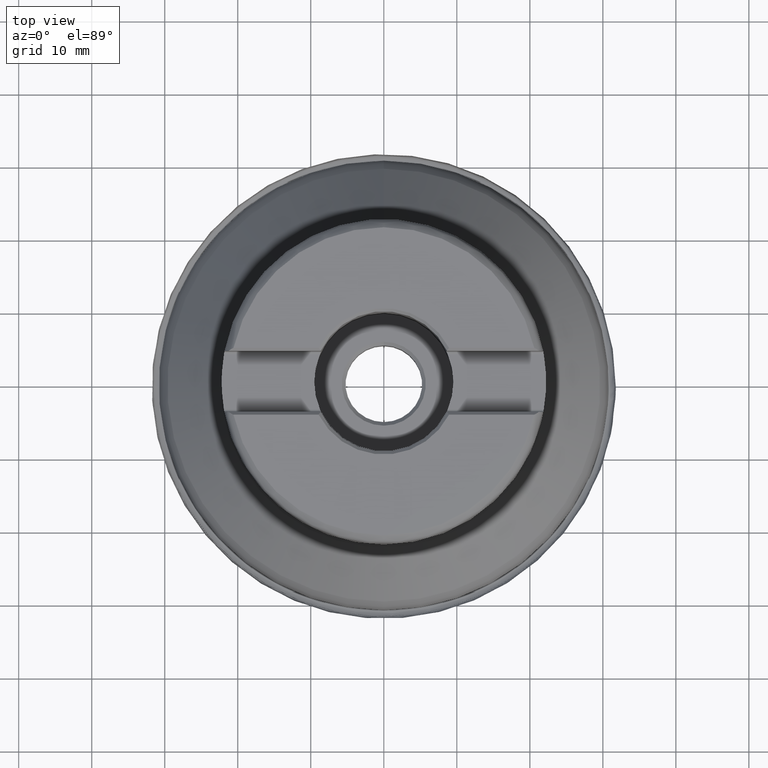
[diagram: clean part render]
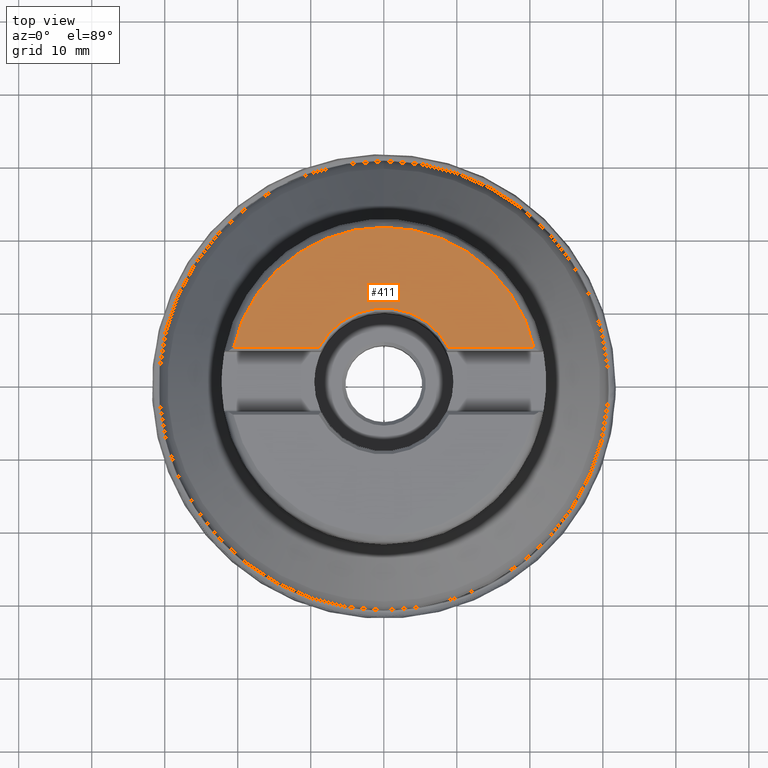
[diagram: same view with one face highlighted and labeled with its STEP entity id]
A machine part, top view. The second image highlights one B-rep face of the part: STEP entity #411.
In plain terms, the highlighted planar face has unit normal (0, 0, 1).
Its self-contained STEP definition (entity closure, byte-faithful):
#301=PLANE('',#1292);
#311=LINE('',#1961,#338);
#313=LINE('',#1981,#340);
#338=VECTOR('',#1350,1.);
#340=VECTOR('',#1362,1.);
#411=ADVANCED_FACE('',(#472),#301,.T.);
#472=FACE_OUTER_BOUND('',#554,.T.);
#554=EDGE_LOOP('',(#853,#854,#855,#856));
#606=CIRCLE('',#1198,21.0967797887081);
#610=CIRCLE('',#1210,10.0269019087899);
#853=ORIENTED_EDGE('',*,*,#1013,.F.);
#854=ORIENTED_EDGE('',*,*,#1035,.F.);
#855=ORIENTED_EDGE('',*,*,#1032,.F.);
#856=ORIENTED_EDGE('',*,*,#1028,.F.);
#916=VERTEX_POINT('',#1898);
#917=VERTEX_POINT('',#1900);
#927=VERTEX_POINT('',#1962);
#930=VERTEX_POINT('',#1973);
#1013=EDGE_CURVE('',#916,#917,#606,.T.);
#1028=EDGE_CURVE('',#917,#927,#311,.T.);
#1032=EDGE_CURVE('',#927,#930,#610,.T.);
#1035=EDGE_CURVE('',#930,#916,#313,.T.);
#1198=AXIS2_PLACEMENT_3D('',#1899,#1326,#1327);
#1210=AXIS2_PLACEMENT_3D('',#1972,#1356,#1357);
#1292=AXIS2_PLACEMENT_3D('',#2290,#1538,#1539);
#1326=DIRECTION('',(0.,-1.17145536458252E-15,-1.));
#1327=DIRECTION('',(0.,-1.,1.31563091114431E-15));
#1350=DIRECTION('',(-1.,0.,0.));
#1356=DIRECTION('',(0.,1.17145536458252E-15,1.));
#1357=DIRECTION('',(0.,-1.,1.38405540754805E-15));
#1362=DIRECTION('',(-1.,0.,0.));
#1538=DIRECTION('',(0.,1.17145536458252E-15,1.));
#1539=DIRECTION('',(0.,-1.,1.17267306976032E-15));
#1898=CARTESIAN_POINT('',(-20.5947442920258,4.57499999999295,44.4499999999929));
#1899=CARTESIAN_POINT('',(0.,5.20711909556932E-14,44.45));
#1900=CARTESIAN_POINT('',(20.5947442920218,4.57500000000005,44.45));
#1961=CARTESIAN_POINT('',(27.,4.57500000000005,44.45));
#1962=CARTESIAN_POINT('',(8.92233920496714,4.57500000000005,44.45));
#1972=CARTESIAN_POINT('',(0.,5.20711909556932E-14,44.45));
#1973=CARTESIAN_POINT('',(-8.92233920496714,4.57500000000005,44.45));
#1981=CARTESIAN_POINT('',(27.,4.57500000000005,44.45));
#2290=CARTESIAN_POINT('',(0.,5.20711909556932E-14,44.45));